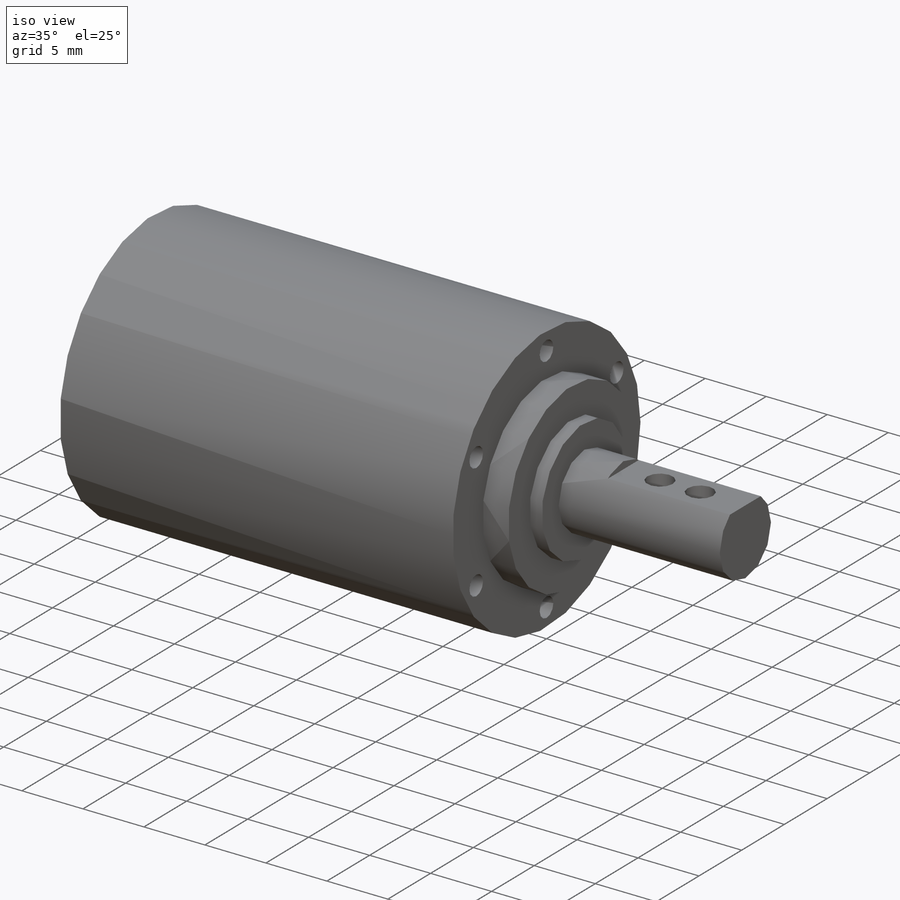
[diagram: iso view]
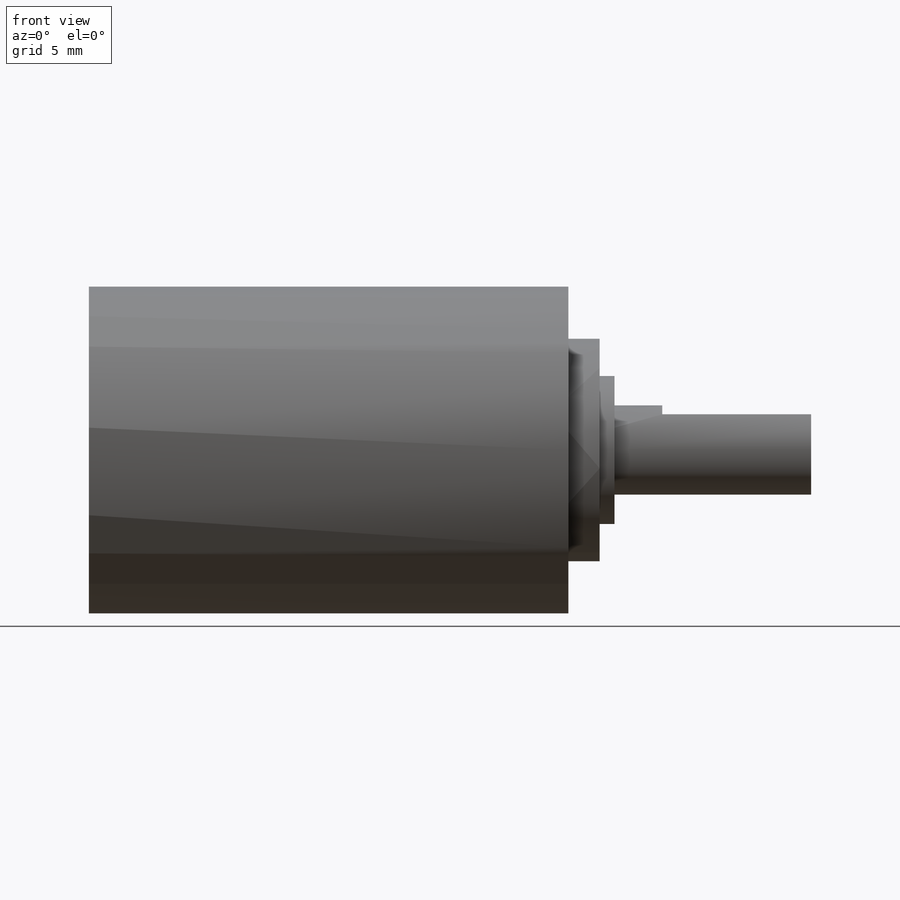
[diagram: front view]
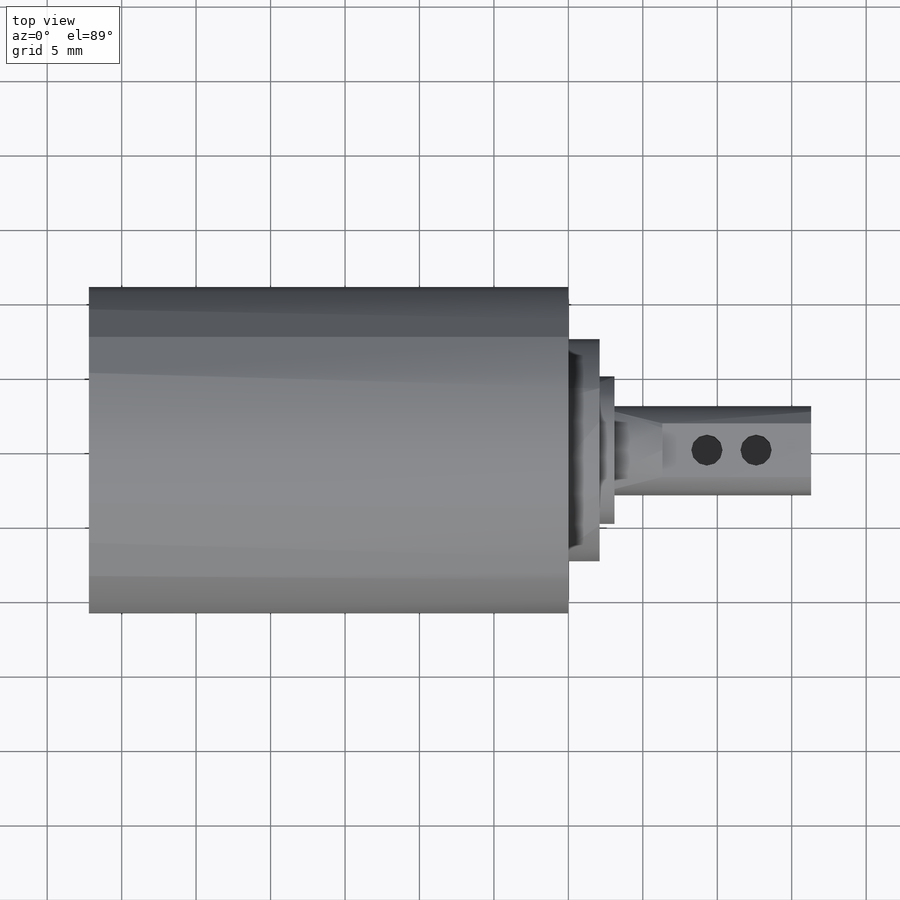
[diagram: top view]
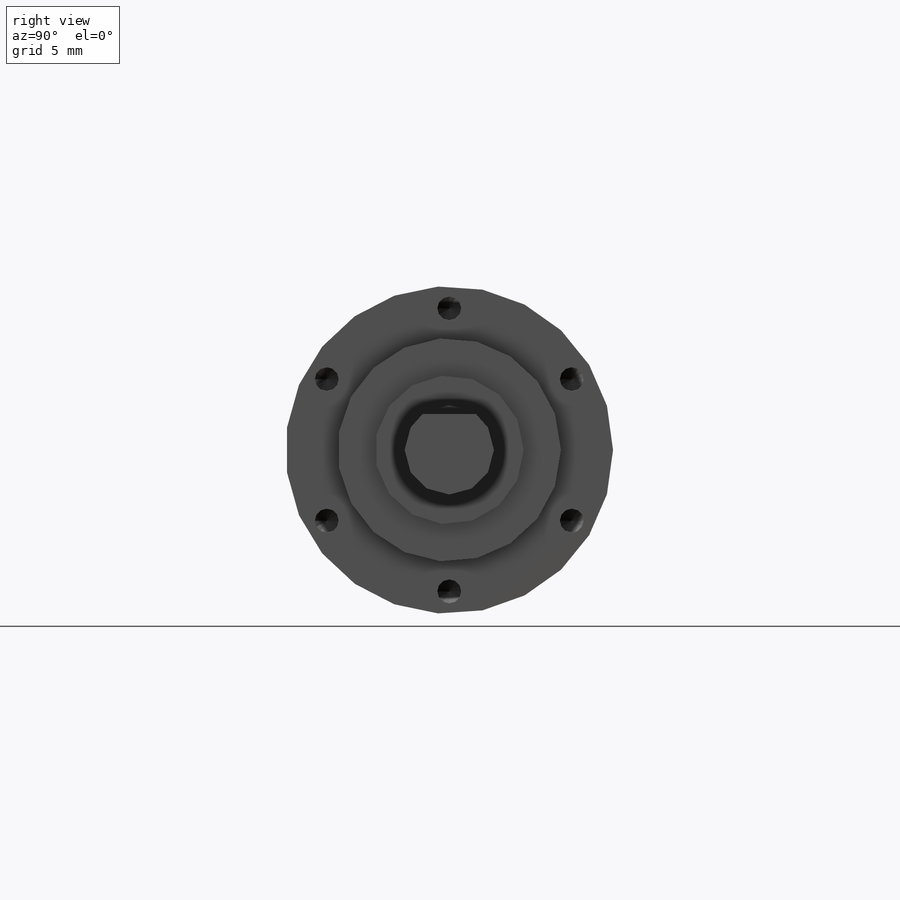
[diagram: right view]
SOLIDWORKS PART (.sldprt)
format: sldprt  version: not decoded by parser v0  size: 435,712 bytes
history: native  units: mm
features: sketch x7, cut_extrude x2, material x1, revolve x1, hole x1, plane x1 (+12 scaffold rows collapsed)
feature tree (25):
  scaffold x12  (default folders/planes/origin — collapsed)
  material  "Material <not specified>"
  sketch  "Sketch1"  dims[D1=11.0mm D2=2.1mm D3=7.5mm D4=10.0mm D5=3.1mm D6=3.0mm D7=16.3mm D8=32.2mm]
  revolve  "Revolve1"  Angle=360deg
  sketch  "Sketch2"  dims[D1=5.4mm]
  sketch  "Sketch3"  dims[D1=19.0mm]
  hole  "M2 Tapped Hole1"  Diameter=1.6mm Depth=3mm
  sketch  "Sketch5"  dims[c1.D1=~8.163988mm c2.D1=60.0deg]
  sketch  "Sketch4"  dims[hole-wizard template sketch: 47 standard entries collapsed; hole parameters kept: c15.Tap Drill Depth=3.0mm c15.D3=~14.816244mm c15.Drill Angle=118.0deg]
  plane  "Plane1"  Offset=10mm
  sketch  "Sketch6"
  cut_extrude  "Cut-Extrude1"  Depth=20mm
  sketch  "Esquisse1"  dims[D3=2.1mm D4=2.1mm D1=3.7mm D2=7.0mm]
  cut_extrude  "Enlèv. mat.-Extru.1"  Depth=4mm
decode coverage: 10 of 11 modeling features carry decoded parameters
note: ~ marks probable driven/reference dimensions
note: suppression state not decoded; provenance and decode notes live in map.json
